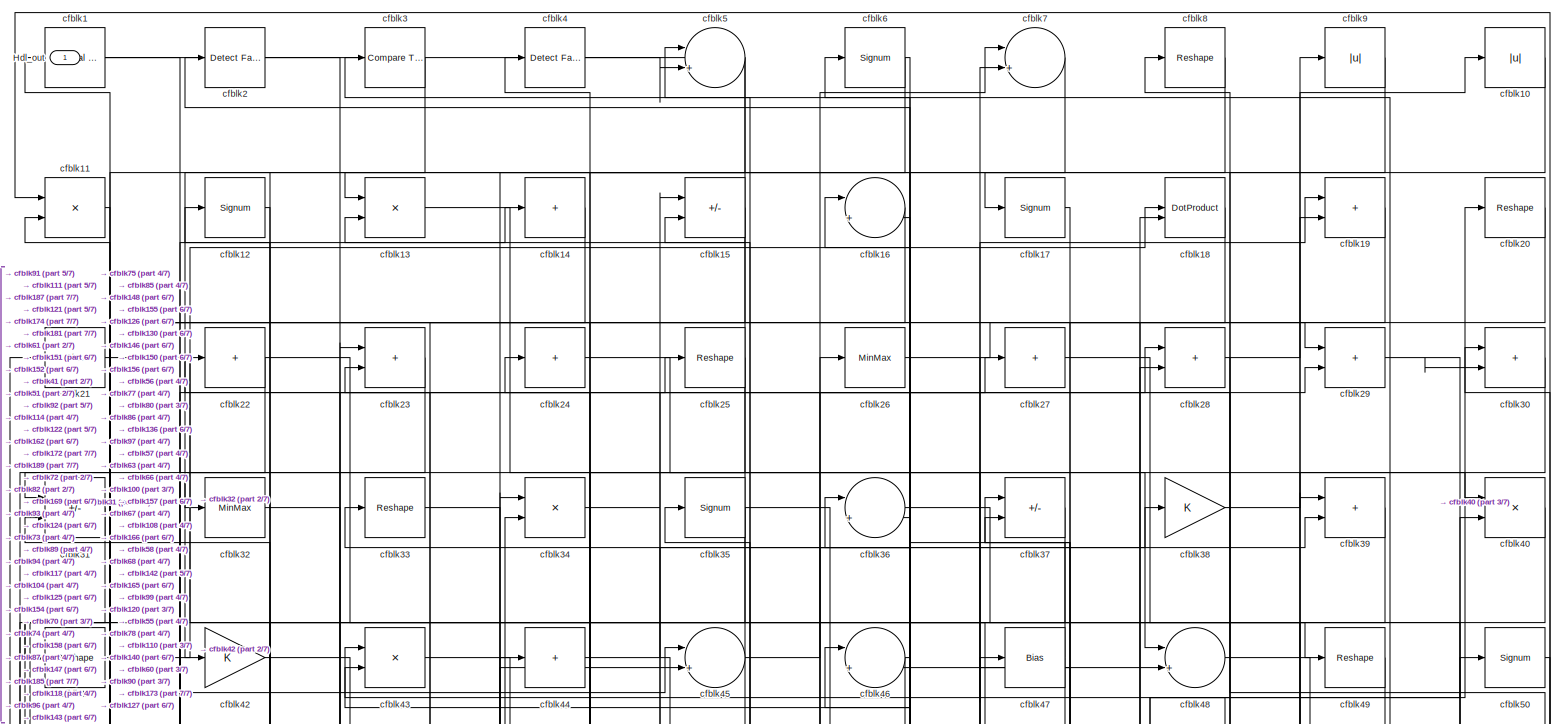
[diagram: root canvas - part 1/7, full width, top band]
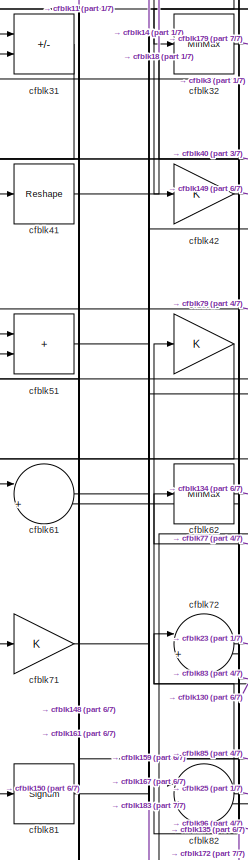
[diagram: root canvas - part 2/7, top left region]
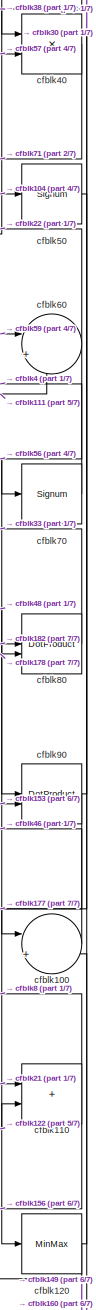
[diagram: root canvas - part 3/7, middle right region]
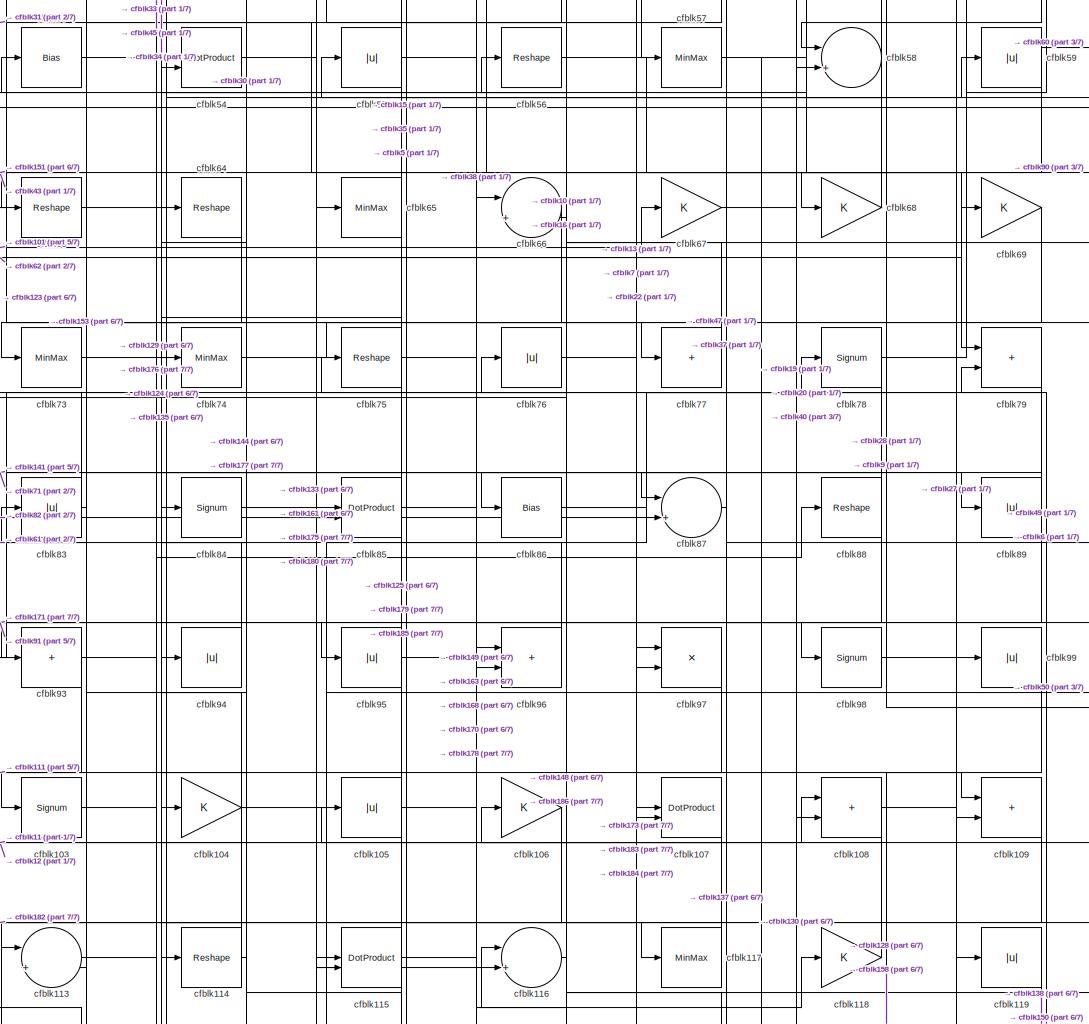
[diagram: root canvas - part 4/7, central region]
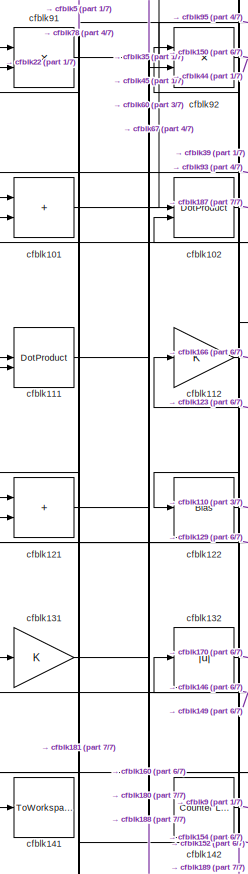
[diagram: root canvas - part 5/7, middle left region]
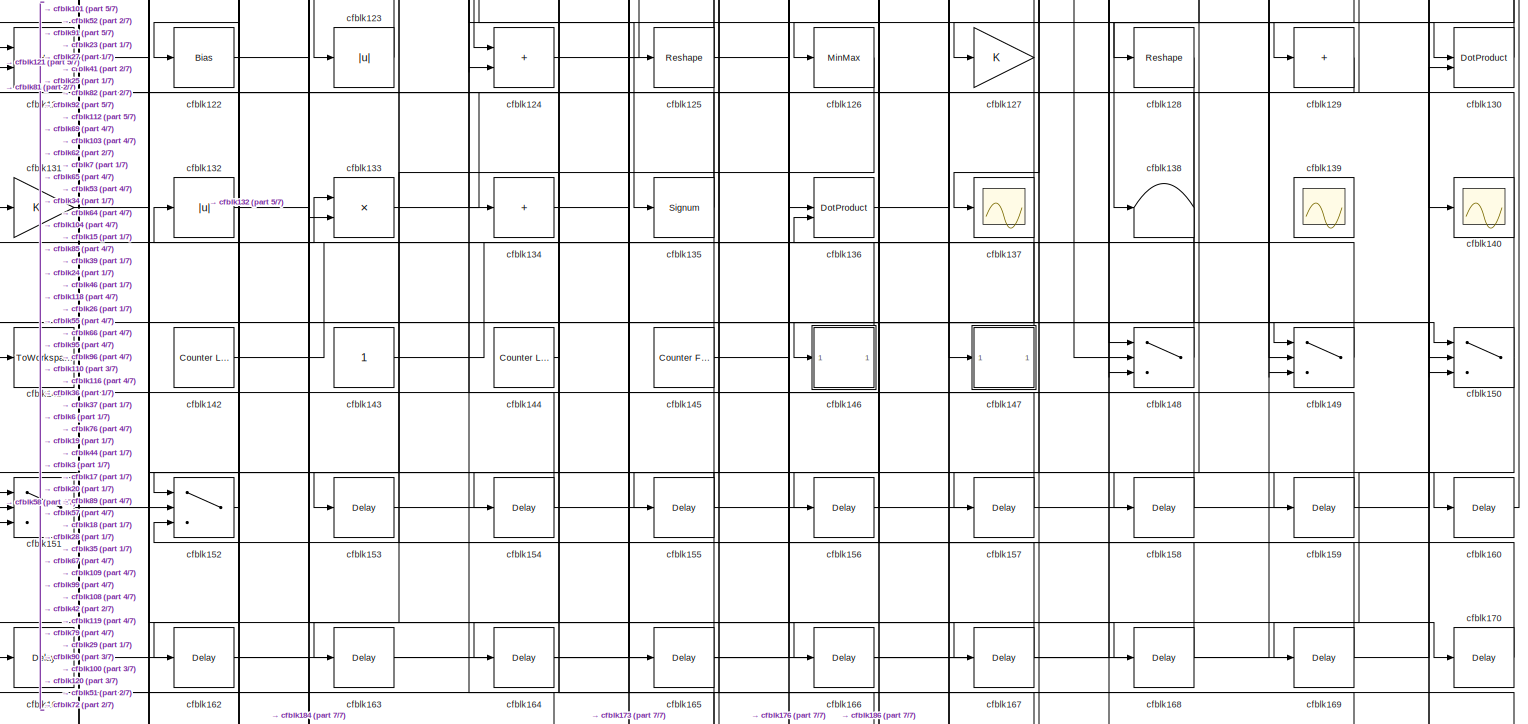
[diagram: root canvas - part 6/7, full width, bottom band]
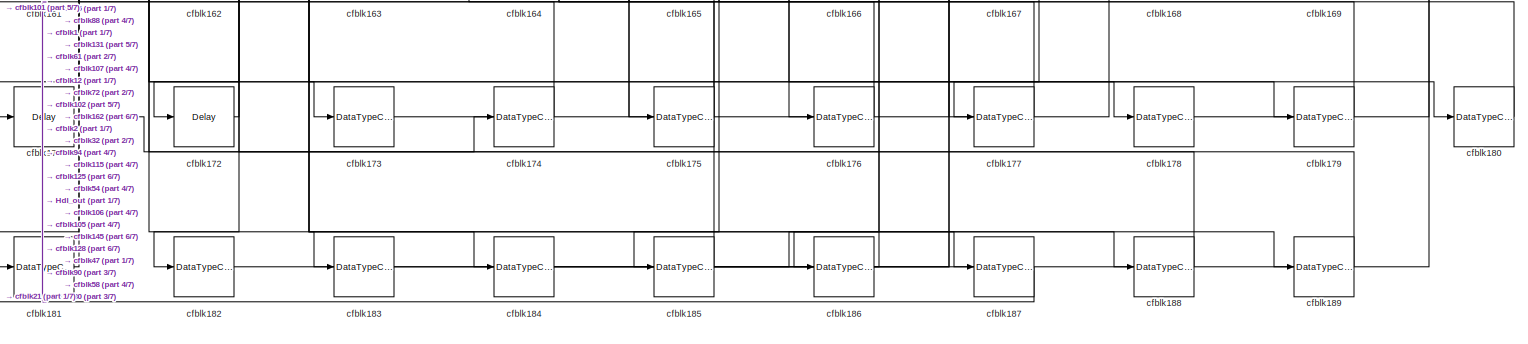
[diagram: root canvas - part 7/7, full width, bottom band]
MODEL slx_e791ef242f32
KIND model
CONFIG AbsTol = auto
CONFIG EnableMultiTasking = off
CONFIG FixedStep = auto
CONFIG MaxStep = auto
CONFIG MinStep = auto
CONFIG RelTol = 1e-3
CONFIG SampleTimeConstraint = Unconstrained
CONFIG SolverName = VariableStepAuto
CONFIG StartTime = 0.0
CONFIG StopTime = 10.0
BLOCK [Outport] Hdl_out
  OutDataTypeStr = uint8
BLOCK [Reference] cfblk1  REF=hdlsllib/Logic and Bit
Operations/Interval Test
  SourceBlock = hdlsllib/Logic and Bit\nOperations/Interval Test
  SourceType = Interval Test
BLOCK [Abs] cfblk10
  OutDataTypeStr = uint8
  SaturateOnIntegerOverflow = off
BLOCK [Sum] cfblk100
  Inputs = |++
  OutDataTypeStr = uint8
BLOCK [Sum] cfblk101
  IconShape = rectangular
  OutDataTypeStr = uint8
BLOCK [DotProduct] cfblk102
  OutDataTypeStr = uint8
BLOCK [Signum] cfblk103
BLOCK [Gain] cfblk104
  OutDataTypeStr = uint8
BLOCK [Abs] cfblk105
  OutDataTypeStr = uint8
  SaturateOnIntegerOverflow = off
BLOCK [Gain] cfblk106
  OutDataTypeStr = uint8
BLOCK [DotProduct] cfblk107
  OutDataTypeStr = uint8
BLOCK [Sum] cfblk108
  IconShape = rectangular
  OutDataTypeStr = uint8
BLOCK [Sum] cfblk109
  IconShape = rectangular
  OutDataTypeStr = uint8
BLOCK [Product] cfblk11
  Inputs = */
  OutDataTypeStr = uint8
  RndMeth = Zero
  SaturateOnIntegerOverflow = on
BLOCK [Sum] cfblk110
  IconShape = rectangular
  OutDataTypeStr = uint8
BLOCK [DotProduct] cfblk111
  OutDataTypeStr = uint8
BLOCK [Gain] cfblk112
  OutDataTypeStr = uint8
BLOCK [Sum] cfblk113
  Inputs = |++
  OutDataTypeStr = uint8
BLOCK [Reshape] cfblk114
BLOCK [DotProduct] cfblk115
  OutDataTypeStr = uint8
BLOCK [Sum] cfblk116
  Inputs = |++
  OutDataTypeStr = uint8
BLOCK [MinMax] cfblk117
  OutDataTypeStr = uint8
BLOCK [Gain] cfblk118
  OutDataTypeStr = uint8
BLOCK [Abs] cfblk119
  OutDataTypeStr = uint8
  SaturateOnIntegerOverflow = off
BLOCK [Signum] cfblk12
BLOCK [MinMax] cfblk120
  OutDataTypeStr = uint8
BLOCK [Sum] cfblk121
  IconShape = rectangular
  OutDataTypeStr = uint8
BLOCK [Bias] cfblk122
  Bias = 0.0
  SaturateOnIntegerOverflow = off
BLOCK [Abs] cfblk123
  OutDataTypeStr = uint8
  SaturateOnIntegerOverflow = off
BLOCK [Sum] cfblk124
  IconShape = rectangular
  OutDataTypeStr = uint8
BLOCK [Reshape] cfblk125
BLOCK [MinMax] cfblk126
  OutDataTypeStr = uint8
BLOCK [Gain] cfblk127
  OutDataTypeStr = uint8
BLOCK [Reshape] cfblk128
BLOCK [Sum] cfblk129
  IconShape = rectangular
  Inputs = +
  OutDataTypeStr = uint8
BLOCK [Product] cfblk13
  Inputs = */
  OutDataTypeStr = uint8
  RndMeth = Zero
  SaturateOnIntegerOverflow = on
BLOCK [DotProduct] cfblk130
  OutDataTypeStr = uint8
BLOCK [Gain] cfblk131
  OutDataTypeStr = uint8
BLOCK [Abs] cfblk132
  OutDataTypeStr = uint8
  SaturateOnIntegerOverflow = off
BLOCK [Product] cfblk133
  Inputs = */
  OutDataTypeStr = uint8
  RndMeth = Zero
  SaturateOnIntegerOverflow = on
BLOCK [Sum] cfblk134
  IconShape = rectangular
  Inputs = +
  OutDataTypeStr = uint8
BLOCK [Signum] cfblk135
BLOCK [DotProduct] cfblk136
  OutDataTypeStr = uint8
BLOCK [Scope] cfblk137
  Floating = off
  NumInputPorts = 1
  ScopeSpecificationString = Simulink.scopes.TimeScopeBlockCfg('CurrentConfiguration', extmgr.ConfigurationSet(extmgr.Configuration('Core','General UI',true),extmgr.Configuration('Core','Source UI',true),extmgr.Configuration('Sources','WiredSimulink',true,'DataLoggingVariableName','ScopeData2','DataLoggingSaveFormat','Array','DataLoggingLimitDataPoints',true,'DataLoggingDecimation','1'),extmgr.Configuration('Visuals','Time Do...<+868ch>
BLOCK [Terminator] cfblk138
BLOCK [Scope] cfblk139
  Floating = on
  NumInputPorts = 1
  ScopeSpecificationString = Simulink.scopes.TimeScopeBlockCfg('CurrentConfiguration', extmgr.ConfigurationSet(extmgr.Configuration('Core','General UI',true,'FigureColor',[0.156862745098039 0.156862745098039 0.156862745098039]),extmgr.Configuration('Core','Source UI',true),extmgr.Configuration('Sources','WiredSimulink',true,'DataLoggingVariableName','ScopeData1','DataLoggingSaveFormat','StructureWithTime','DataLoggingLimitDat...<+2713ch>
BLOCK [Sum] cfblk14
  IconShape = rectangular
  Inputs = +
  OutDataTypeStr = uint8
BLOCK [Scope] cfblk140
  Floating = off
  NumInputPorts = 1
  ScopeSpecificationString = Simulink.scopes.TimeScopeBlockCfg('CurrentConfiguration', extmgr.ConfigurationSet(extmgr.Configuration('Core','General UI',true),extmgr.Configuration('Core','Source UI',true),extmgr.Configuration('Sources','WiredSimulink',true,'DataLoggingVariableName','ScopeData2','DataLoggingSaveFormat','Array','DataLoggingLimitDataPoints',true,'DataLoggingDecimation','1'),extmgr.Configuration('Visuals','Time Do...<+868ch>
BLOCK [ToWorkspace] cfblk141
  MaxDataPoints = inf
  SampleTime = -1
  SaveFormat = Timeseries
  VariableName = simout
BLOCK [Reference] cfblk142  REF=hdlsllib/Sources/Counter
Limited
  SourceBlock = hdlsllib/Sources/Counter\nLimited
  SourceType = Counter Limited
BLOCK [Constant] cfblk143
  OutDataTypeStr = uint8
  SampleTime = -1
BLOCK [Reference] cfblk144  REF=hdlsllib/Sources/Counter
Limited
  SourceBlock = hdlsllib/Sources/Counter\nLimited
  SourceType = Counter Limited
BLOCK [Reference] cfblk145  REF=hdlsllib/Sources/Counter
Free-Running
  SourceBlock = hdlsllib/Sources/Counter\nFree-Running
  SourceType = Counter Free-Running
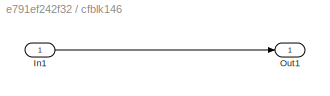
BLOCK [SubSystem] cfblk146
  LibrarySourceBlock = hdlsllib/Ports &\nSubsystems/Subsystem
BLOCK [Inport] cfblk146/In1
BLOCK [Outport] cfblk146/Out1
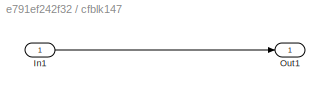
BLOCK [SubSystem] cfblk147
  LibrarySourceBlock = hdlsllib/Ports &\nSubsystems/Subsystem
BLOCK [Inport] cfblk147/In1
BLOCK [Outport] cfblk147/Out1
BLOCK [Switch] cfblk148
  InputSameDT = off
  OutDataTypeStr = uint8
  SaturateOnIntegerOverflow = off
BLOCK [Switch] cfblk149
  InputSameDT = off
  OutDataTypeStr = uint8
  SaturateOnIntegerOverflow = off
BLOCK [Sum] cfblk15
  IconShape = rectangular
  Inputs = +-
  OutDataTypeStr = uint8
BLOCK [Switch] cfblk150
  InputSameDT = off
  OutDataTypeStr = uint8
  SaturateOnIntegerOverflow = off
BLOCK [Switch] cfblk151
  InputSameDT = off
  OutDataTypeStr = uint8
  SaturateOnIntegerOverflow = off
BLOCK [Switch] cfblk152
  InputSameDT = off
  OutDataTypeStr = uint8
  SaturateOnIntegerOverflow = off
BLOCK [Delay] cfblk153
  InputPortMap = u0
  SampleTime = 1
BLOCK [Delay] cfblk154
  InputPortMap = u0
  SampleTime = 1
BLOCK [Delay] cfblk155
  InputPortMap = u0
  SampleTime = 1
BLOCK [Delay] cfblk156
  InputPortMap = u0
  SampleTime = 1
BLOCK [Delay] cfblk157
  InputPortMap = u0
  SampleTime = 1
BLOCK [Delay] cfblk158
  InputPortMap = u0
  SampleTime = 1
BLOCK [Delay] cfblk159
  InputPortMap = u0
  SampleTime = 1
BLOCK [Sum] cfblk16
  Inputs = |++
  OutDataTypeStr = uint8
BLOCK [Delay] cfblk160
  InputPortMap = u0
  SampleTime = 1
BLOCK [Delay] cfblk161
  InputPortMap = u0
  SampleTime = 1
BLOCK [Delay] cfblk162
  InputPortMap = u0
  SampleTime = 1
BLOCK [Delay] cfblk163
  InputPortMap = u0
  SampleTime = 1
BLOCK [Delay] cfblk164
  InputPortMap = u0
  SampleTime = 1
BLOCK [Delay] cfblk165
  InputPortMap = u0
  SampleTime = 1
BLOCK [Delay] cfblk166
  InputPortMap = u0
  SampleTime = 1
BLOCK [Delay] cfblk167
  InputPortMap = u0
  SampleTime = 1
BLOCK [Delay] cfblk168
  InputPortMap = u0
  SampleTime = 1
BLOCK [Delay] cfblk169
  InputPortMap = u0
  SampleTime = 1
BLOCK [Signum] cfblk17
BLOCK [Delay] cfblk170
  InputPortMap = u0
  SampleTime = 1
BLOCK [Delay] cfblk171
  InputPortMap = u0
  SampleTime = 1
BLOCK [Delay] cfblk172
  InputPortMap = u0
  SampleTime = 1
BLOCK [DataTypeConversion] cfblk173
  OutDataTypeStr = uint8
  RndMeth = Floor
  SaturateOnIntegerOverflow = off
BLOCK [DataTypeConversion] cfblk174
  OutDataTypeStr = uint8
  RndMeth = Floor
  SaturateOnIntegerOverflow = off
BLOCK [DataTypeConversion] cfblk175
  OutDataTypeStr = uint8
  RndMeth = Floor
  SaturateOnIntegerOverflow = off
BLOCK [DataTypeConversion] cfblk176
  OutDataTypeStr = uint8
  RndMeth = Floor
  SaturateOnIntegerOverflow = off
BLOCK [DataTypeConversion] cfblk177
  OutDataTypeStr = uint8
  RndMeth = Floor
  SaturateOnIntegerOverflow = off
BLOCK [DataTypeConversion] cfblk178
  OutDataTypeStr = uint8
  RndMeth = Floor
  SaturateOnIntegerOverflow = off
BLOCK [DataTypeConversion] cfblk179
  OutDataTypeStr = uint8
  RndMeth = Floor
  SaturateOnIntegerOverflow = off
BLOCK [DotProduct] cfblk18
  OutDataTypeStr = uint8
BLOCK [DataTypeConversion] cfblk180
  OutDataTypeStr = uint8
  RndMeth = Floor
  SaturateOnIntegerOverflow = off
BLOCK [DataTypeConversion] cfblk181
  OutDataTypeStr = uint8
  RndMeth = Floor
  SaturateOnIntegerOverflow = off
BLOCK [DataTypeConversion] cfblk182
  OutDataTypeStr = uint8
  RndMeth = Floor
  SaturateOnIntegerOverflow = off
BLOCK [DataTypeConversion] cfblk183
  OutDataTypeStr = uint8
  RndMeth = Floor
  SaturateOnIntegerOverflow = off
BLOCK [DataTypeConversion] cfblk184
  OutDataTypeStr = uint8
  RndMeth = Floor
  SaturateOnIntegerOverflow = off
BLOCK [DataTypeConversion] cfblk185
  OutDataTypeStr = uint8
  RndMeth = Floor
  SaturateOnIntegerOverflow = off
BLOCK [DataTypeConversion] cfblk186
  OutDataTypeStr = uint8
  RndMeth = Floor
  SaturateOnIntegerOverflow = off
BLOCK [DataTypeConversion] cfblk187
  OutDataTypeStr = uint8
  RndMeth = Floor
  SaturateOnIntegerOverflow = off
BLOCK [DataTypeConversion] cfblk188
  OutDataTypeStr = uint8
  RndMeth = Floor
  SaturateOnIntegerOverflow = off
BLOCK [DataTypeConversion] cfblk189
  OutDataTypeStr = uint8
  RndMeth = Floor
  SaturateOnIntegerOverflow = off
BLOCK [Sum] cfblk19
  IconShape = rectangular
  OutDataTypeStr = uint8
BLOCK [Reference] cfblk2  REF=hdlsllib/Logic and Bit
Operations/Detect Fall
Nonpositive
  SourceBlock = hdlsllib/Logic and Bit\nOperations/Detect Fall\nNonpositive
  SourceType = Detect Fall Nonpositive
BLOCK [Reshape] cfblk20
BLOCK [Bias] cfblk21
  Bias = 0.0
  SaturateOnIntegerOverflow = off
BLOCK [Sum] cfblk22
  IconShape = rectangular
  Inputs = +
  OutDataTypeStr = uint8
BLOCK [Sum] cfblk23
  IconShape = rectangular
  OutDataTypeStr = uint8
BLOCK [Sum] cfblk24
  IconShape = rectangular
  Inputs = +
  OutDataTypeStr = uint8
BLOCK [Reshape] cfblk25
BLOCK [MinMax] cfblk26
  OutDataTypeStr = uint8
BLOCK [Sum] cfblk27
  IconShape = rectangular
  Inputs = +
  OutDataTypeStr = uint8
BLOCK [Sum] cfblk28
  IconShape = rectangular
  OutDataTypeStr = uint8
BLOCK [Sum] cfblk29
  IconShape = rectangular
  OutDataTypeStr = uint8
BLOCK [Reference] cfblk3  REF=hdlsllib/Logic and Bit
Operations/Compare
To Zero
  SourceBlock = hdlsllib/Logic and Bit\nOperations/Compare\nTo Zero
  SourceType = Compare To Zero
BLOCK [Sum] cfblk30
  IconShape = rectangular
  OutDataTypeStr = uint8
BLOCK [Sum] cfblk31
  IconShape = rectangular
  Inputs = +-
  OutDataTypeStr = uint8
BLOCK [MinMax] cfblk32
  OutDataTypeStr = uint8
BLOCK [Reshape] cfblk33
BLOCK [Product] cfblk34
  Inputs = */
  OutDataTypeStr = uint8
  RndMeth = Zero
  SaturateOnIntegerOverflow = on
BLOCK [Signum] cfblk35
BLOCK [Sum] cfblk36
  Inputs = |++
  OutDataTypeStr = uint8
BLOCK [Sum] cfblk37
  IconShape = rectangular
  Inputs = +-
  OutDataTypeStr = uint8
BLOCK [Gain] cfblk38
  OutDataTypeStr = uint8
BLOCK [Sum] cfblk39
  IconShape = rectangular
  OutDataTypeStr = uint8
BLOCK [Reference] cfblk4  REF=hdlsllib/Logic and Bit
Operations/Detect Fall
Nonpositive
  SourceBlock = hdlsllib/Logic and Bit\nOperations/Detect Fall\nNonpositive
  SourceType = Detect Fall Nonpositive
BLOCK [Product] cfblk40
  Inputs = */
  OutDataTypeStr = uint8
  RndMeth = Zero
  SaturateOnIntegerOverflow = on
BLOCK [Reshape] cfblk41
BLOCK [Gain] cfblk42
  OutDataTypeStr = uint8
BLOCK [Product] cfblk43
  Inputs = */
  OutDataTypeStr = uint8
  RndMeth = Zero
  SaturateOnIntegerOverflow = on
BLOCK [Sum] cfblk44
  IconShape = rectangular
  Inputs = +
  OutDataTypeStr = uint8
BLOCK [Sum] cfblk45
  Inputs = |++
  OutDataTypeStr = uint8
BLOCK [Sum] cfblk46
  Inputs = |++
  OutDataTypeStr = uint8
BLOCK [Bias] cfblk47
  Bias = 0.0
  SaturateOnIntegerOverflow = off
BLOCK [Sum] cfblk48
  Inputs = |++
  OutDataTypeStr = uint8
BLOCK [Reshape] cfblk49
BLOCK [Sum] cfblk5
  Inputs = |++
  OutDataTypeStr = uint8
BLOCK [Signum] cfblk50
BLOCK [Sum] cfblk51
  IconShape = rectangular
  OutDataTypeStr = uint8
BLOCK [Gain] cfblk52
  OutDataTypeStr = uint8
BLOCK [Bias] cfblk53
  Bias = 0.0
  SaturateOnIntegerOverflow = off
BLOCK [DotProduct] cfblk54
  OutDataTypeStr = uint8
BLOCK [Abs] cfblk55
  OutDataTypeStr = uint8
  SaturateOnIntegerOverflow = off
BLOCK [Reshape] cfblk56
BLOCK [MinMax] cfblk57
  OutDataTypeStr = uint8
BLOCK [Sum] cfblk58
  Inputs = |++
  OutDataTypeStr = uint8
BLOCK [Abs] cfblk59
  OutDataTypeStr = uint8
  SaturateOnIntegerOverflow = off
BLOCK [Signum] cfblk6
BLOCK [Sum] cfblk60
  Inputs = |++
  OutDataTypeStr = uint8
BLOCK [Sum] cfblk61
  Inputs = |++
  OutDataTypeStr = uint8
BLOCK [MinMax] cfblk62
  OutDataTypeStr = uint8
BLOCK [Reshape] cfblk63
BLOCK [Reshape] cfblk64
BLOCK [MinMax] cfblk65
  OutDataTypeStr = uint8
BLOCK [Sum] cfblk66
  Inputs = |++
  OutDataTypeStr = uint8
BLOCK [Gain] cfblk67
  OutDataTypeStr = uint8
BLOCK [Gain] cfblk68
  OutDataTypeStr = uint8
BLOCK [Gain] cfblk69
  OutDataTypeStr = uint8
BLOCK [Sum] cfblk7
  Inputs = |++
  OutDataTypeStr = uint8
BLOCK [Signum] cfblk70
BLOCK [Gain] cfblk71
  OutDataTypeStr = uint8
BLOCK [Sum] cfblk72
  Inputs = |++
  OutDataTypeStr = uint8
BLOCK [MinMax] cfblk73
  OutDataTypeStr = uint8
BLOCK [MinMax] cfblk74
  OutDataTypeStr = uint8
BLOCK [Reshape] cfblk75
BLOCK [Abs] cfblk76
  OutDataTypeStr = uint8
  SaturateOnIntegerOverflow = off
BLOCK [Sum] cfblk77
  IconShape = rectangular
  Inputs = +
  OutDataTypeStr = uint8
BLOCK [Signum] cfblk78
BLOCK [Sum] cfblk79
  IconShape = rectangular
  OutDataTypeStr = uint8
BLOCK [Reshape] cfblk8
BLOCK [DotProduct] cfblk80
  OutDataTypeStr = uint8
BLOCK [Signum] cfblk81
BLOCK [Sum] cfblk82
  Inputs = |++
  OutDataTypeStr = uint8
BLOCK [Abs] cfblk83
  OutDataTypeStr = uint8
  SaturateOnIntegerOverflow = off
BLOCK [Signum] cfblk84
BLOCK [DotProduct] cfblk85
  OutDataTypeStr = uint8
BLOCK [Bias] cfblk86
  Bias = 0.0
  SaturateOnIntegerOverflow = off
BLOCK [Sum] cfblk87
  Inputs = |++
  OutDataTypeStr = uint8
BLOCK [Reshape] cfblk88
BLOCK [Abs] cfblk89
  OutDataTypeStr = uint8
  SaturateOnIntegerOverflow = off
BLOCK [Abs] cfblk9
  OutDataTypeStr = uint8
  SaturateOnIntegerOverflow = off
BLOCK [DotProduct] cfblk90
  OutDataTypeStr = uint8
BLOCK [Product] cfblk91
  Inputs = */
  OutDataTypeStr = uint8
  RndMeth = Zero
  SaturateOnIntegerOverflow = on
BLOCK [Product] cfblk92
  Inputs = */
  OutDataTypeStr = uint8
  RndMeth = Zero
  SaturateOnIntegerOverflow = on
BLOCK [Sum] cfblk93
  IconShape = rectangular
  Inputs = +
  OutDataTypeStr = uint8
BLOCK [Abs] cfblk94
  OutDataTypeStr = uint8
  SaturateOnIntegerOverflow = off
BLOCK [Abs] cfblk95
  OutDataTypeStr = uint8
  SaturateOnIntegerOverflow = off
BLOCK [Sum] cfblk96
  IconShape = rectangular
  OutDataTypeStr = uint8
BLOCK [Product] cfblk97
  Inputs = */
  OutDataTypeStr = uint8
  RndMeth = Zero
  SaturateOnIntegerOverflow = on
BLOCK [Signum] cfblk98
BLOCK [Abs] cfblk99
  OutDataTypeStr = uint8
  SaturateOnIntegerOverflow = off
LINE cfblk100:1 -> cfblk46:2
LINE cfblk101:1 -> cfblk67:1
LINE cfblk102:1 -> cfblk187:1
LINE cfblk103:1 -> cfblk129:1
NET cfblk104:1 -> cfblk133:2, cfblk148:3, cfblk50:1, cfblk83:1
LINE cfblk105:1 -> cfblk178:1
LINE cfblk106:1 -> cfblk185:1
LINE cfblk107:1 -> cfblk182:1
NET cfblk108:1 -> cfblk123:1, cfblk150:2
LINE cfblk109:1 -> cfblk158:1
NET cfblk10:1 -> cfblk74:1, cfblk86:1
NET cfblk110:1 -> cfblk156:1, cfblk8:1
NET cfblk111:1 -> cfblk45:1, cfblk60:2
LINE cfblk112:1 -> cfblk166:1
LINE cfblk113:1 -> cfblk69:1
NET cfblk114:1 -> cfblk12:1, cfblk84:1
LINE cfblk115:1 -> cfblk108:1
LINE cfblk116:1 -> cfblk56:1
LINE cfblk117:1 -> cfblk11:2
LINE cfblk118:1 -> cfblk35:1
LINE cfblk119:1 -> cfblk138:1
LINE cfblk11:1 -> cfblk31:1
NET cfblk120:1 -> cfblk149:3, cfblk30:1
LINE cfblk121:1 -> cfblk160:1
LINE cfblk122:1 -> cfblk110:2
LINE cfblk123:1 -> cfblk112:1
LINE cfblk124:1 -> cfblk39:1
NET cfblk125:1 -> cfblk118:1, cfblk24:1
NET cfblk126:1 -> cfblk163:1, cfblk164:1
NET cfblk127:1 -> cfblk151:3, cfblk3:1
LINE cfblk128:1 -> cfblk186:1
LINE cfblk129:1 -> cfblk121:2
LINE cfblk12:1 -> cfblk172:1
NET cfblk130:1 -> cfblk36:2, cfblk51:2, cfblk72:1
LINE cfblk131:1 -> cfblk180:1
LINE cfblk132:1 -> cfblk170:1
LINE cfblk133:1 -> cfblk65:1
LINE cfblk134:1 -> cfblk165:1
LINE cfblk135:1 -> cfblk82:1
LINE cfblk136:1 -> cfblk19:1
LINE cfblk13:1 -> cfblk97:1
LINE cfblk142:1 -> cfblk9:1
NET cfblk143:1 -> cfblk26:1, cfblk28:2
LINE cfblk144:1 -> cfblk64:1
LINE cfblk145:1 -> cfblk176:1
LINE cfblk146/In1:1 -> cfblk146/Out1:1
LINE cfblk146:1 -> cfblk91:1
LINE cfblk147/In1:1 -> cfblk147/Out1:1
LINE cfblk147:1 -> cfblk136:2
NET cfblk148:1 -> cfblk51:1, cfblk76:1
LINE cfblk149:1 -> cfblk132:1
LINE cfblk14:1 -> cfblk41:1
NET cfblk150:1 -> cfblk169:1, cfblk36:1, cfblk79:2, cfblk81:1
NET cfblk151:1 -> cfblk133:1, cfblk27:1
LINE cfblk152:1 -> cfblk92:1
LINE cfblk153:1 -> cfblk90:2
LINE cfblk154:1 -> cfblk101:2
LINE cfblk155:1 -> cfblk152:1
LINE cfblk156:1 -> cfblk46:1
LINE cfblk157:1 -> cfblk34:1
LINE cfblk158:1 -> cfblk15:1
LINE cfblk159:1 -> cfblk136:1
NET cfblk15:1 -> cfblk13:2, cfblk181:1
LINE cfblk160:1 -> cfblk100:2
LINE cfblk161:1 -> cfblk85:1
LINE cfblk162:1 -> cfblk184:1
LINE cfblk163:1 -> cfblk66:1
LINE cfblk164:1 -> cfblk130:2
LINE cfblk165:1 -> cfblk19:2
LINE cfblk166:1 -> cfblk18:2
LINE cfblk167:1 -> cfblk152:3
LINE cfblk168:1 -> cfblk116:1
LINE cfblk169:1 -> cfblk23:2
LINE cfblk16:1 -> cfblk93:1
LINE cfblk170:1 -> cfblk96:1
LINE cfblk171:1 -> cfblk174:1
LINE cfblk172:1 -> cfblk72:2
NET cfblk173:1 -> cfblk125:1, cfblk47:1, cfblk58:2
LINE cfblk174:1 -> cfblk1:1
LINE cfblk175:1 -> cfblk94:1
LINE cfblk176:1 -> cfblk54:1
LINE cfblk177:1 -> cfblk54:2
LINE cfblk178:1 -> cfblk80:2
LINE cfblk179:1 -> cfblk105:1
LINE cfblk17:1 -> cfblk157:1
NET cfblk180:1 -> cfblk101:1, cfblk115:1
LINE cfblk181:1 -> cfblk131:1
LINE cfblk182:1 -> cfblk80:1
LINE cfblk183:1 -> cfblk107:1
LINE cfblk184:1 -> cfblk107:2
NET cfblk185:1 -> Hdl_out:1, cfblk188:1
LINE cfblk186:1 -> cfblk106:1
LINE cfblk187:1 -> cfblk21:1
LINE cfblk188:1 -> cfblk102:1
LINE cfblk189:1 -> cfblk102:2
LINE cfblk18:1 -> cfblk61:1
NET cfblk19:1 -> cfblk108:2, cfblk114:1, cfblk151:1
LINE cfblk1:1 -> cfblk173:1
LINE cfblk20:1 -> cfblk127:1
LINE cfblk21:1 -> cfblk110:1
NET cfblk22:1 -> cfblk57:1, cfblk91:2
LINE cfblk23:1 -> cfblk152:2
LINE cfblk24:1 -> cfblk48:1
LINE cfblk25:1 -> cfblk162:1
NET cfblk26:1 -> cfblk29:1, cfblk48:2
LINE cfblk27:1 -> cfblk99:1
NET cfblk28:1 -> cfblk10:1, cfblk58:1
NET cfblk29:1 -> cfblk140:1, cfblk30:2
LINE cfblk2:1 -> cfblk189:1
LINE cfblk30:1 -> cfblk104:1
LINE cfblk31:1 -> cfblk79:1
LINE cfblk32:1 -> cfblk179:1
LINE cfblk33:1 -> cfblk89:1
NET cfblk34:1 -> cfblk154:1, cfblk29:2, cfblk87:2
NET cfblk35:1 -> cfblk111:2, cfblk148:1, cfblk92:2
LINE cfblk36:1 -> cfblk49:1
LINE cfblk37:1 -> cfblk146:1
LINE cfblk38:1 -> cfblk40:1
LINE cfblk39:1 -> cfblk122:1
NET cfblk3:1 -> cfblk32:1, cfblk42:1
LINE cfblk40:1 -> cfblk71:1
NET cfblk41:1 -> cfblk150:1, cfblk18:1
LINE cfblk42:1 -> cfblk149:2
LINE cfblk43:1 -> cfblk117:1
NET cfblk44:1 -> cfblk147:1, cfblk39:2
LINE cfblk45:1 -> cfblk7:1
NET cfblk46:1 -> cfblk155:1, cfblk16:1
NET cfblk47:1 -> cfblk2:1, cfblk63:1, cfblk66:2
LINE cfblk48:1 -> cfblk120:1
LINE cfblk49:1 -> cfblk55:1
LINE cfblk4:1 -> cfblk5:2
LINE cfblk50:1 -> cfblk100:1
NET cfblk51:1 -> cfblk14:1, cfblk159:1
LINE cfblk52:1 -> cfblk161:1
LINE cfblk53:1 -> cfblk135:1
LINE cfblk54:1 -> cfblk175:1
LINE cfblk55:1 -> cfblk168:1
NET cfblk56:1 -> cfblk16:2, cfblk7:2, cfblk90:1
NET cfblk57:1 -> cfblk119:1, cfblk148:2, cfblk40:2
NET cfblk58:1 -> cfblk151:2, cfblk43:1
NET cfblk59:1 -> cfblk60:1, cfblk87:1
LINE cfblk5:1 -> cfblk121:1
NET cfblk60:1 -> cfblk22:1, cfblk70:1
LINE cfblk61:1 -> cfblk183:1
LINE cfblk62:1 -> cfblk134:1
LINE cfblk63:1 -> cfblk59:1
LINE cfblk64:1 -> cfblk73:1
LINE cfblk65:1 -> cfblk124:1
LINE cfblk66:1 -> cfblk96:2
NET cfblk67:1 -> cfblk130:1, cfblk37:2
LINE cfblk68:1 -> cfblk5:1
LINE cfblk69:1 -> cfblk153:1
NET cfblk6:1 -> cfblk126:1, cfblk13:1
LINE cfblk70:1 -> cfblk4:1
LINE cfblk71:1 -> cfblk85:2
LINE cfblk72:1 -> cfblk23:1
NET cfblk73:1 -> cfblk20:1, cfblk45:2
LINE cfblk74:1 -> cfblk77:1
NET cfblk75:1 -> cfblk38:1, cfblk97:2, cfblk98:1
LINE cfblk76:1 -> cfblk109:1
NET cfblk77:1 -> cfblk43:2, cfblk62:1
NET cfblk78:1 -> cfblk141:1, cfblk6:1
LINE cfblk79:1 -> cfblk113:2
LINE cfblk7:1 -> cfblk124:2
LINE cfblk80:1 -> cfblk33:1
LINE cfblk81:1 -> cfblk167:1
NET cfblk82:1 -> cfblk25:1, cfblk52:1
NET cfblk83:1 -> cfblk113:1, cfblk31:2
LINE cfblk84:1 -> cfblk116:2
NET cfblk85:1 -> cfblk28:1, cfblk82:2
LINE cfblk86:1 -> cfblk78:1
LINE cfblk87:1 -> cfblk37:1
NET cfblk88:1 -> cfblk171:1, cfblk53:1
NET cfblk89:1 -> cfblk115:2, cfblk137:1, cfblk75:1
LINE cfblk8:1 -> cfblk17:1
NET cfblk90:1 -> cfblk11:1, cfblk177:1
LINE cfblk91:1 -> cfblk95:1
NET cfblk92:1 -> cfblk150:3, cfblk44:1
NET cfblk93:1 -> cfblk111:1, cfblk88:1
LINE cfblk94:1 -> cfblk34:2
LINE cfblk95:1 -> cfblk149:1
NET cfblk96:1 -> cfblk15:2, cfblk61:2
LINE cfblk97:1 -> cfblk103:1
LINE cfblk98:1 -> cfblk109:2
LINE cfblk99:1 -> cfblk128:1
LINE cfblk9:1 -> cfblk68:1
note: NET lines group one-source signal fan-out (src -> all destinations, sorted); 1:1 wires keep LINE
